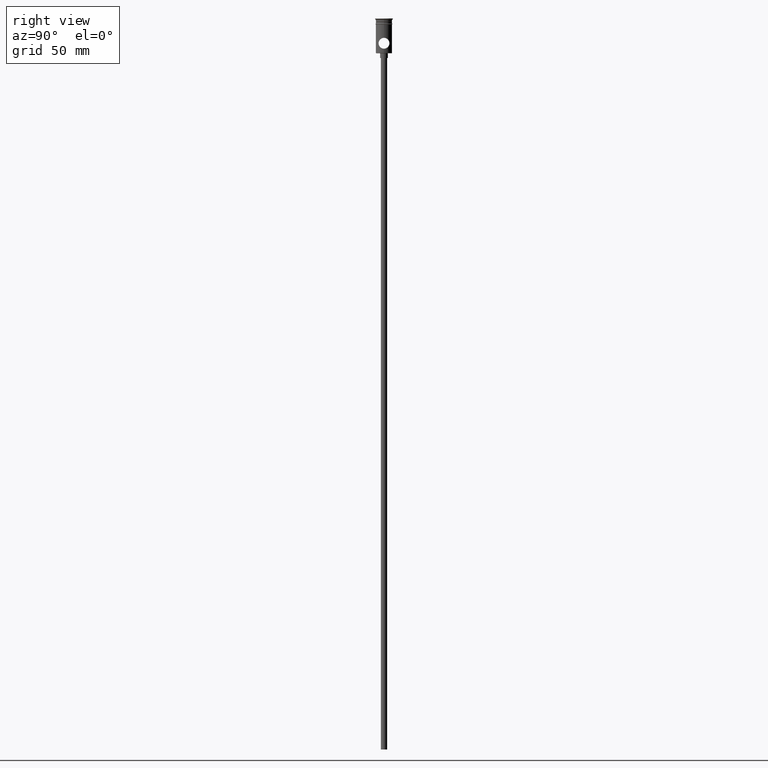
[diagram: clean part render]
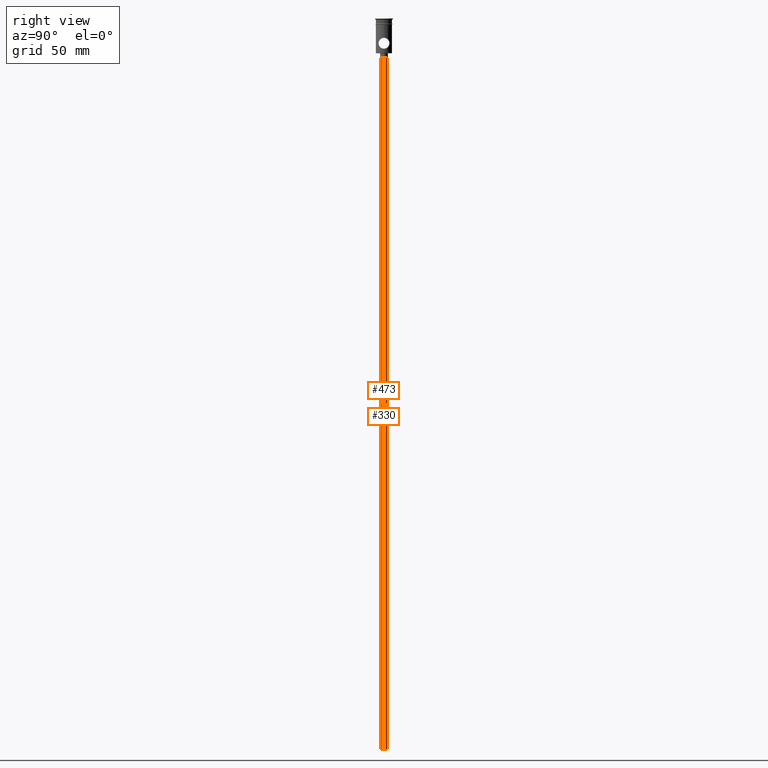
[diagram: same view with one multi-face feature highlighted, each face labeled with its STEP entity id]
A machine part, right view. The highlighted faces form ONE feature: a constant-radius fillet chain: 2 tangent blend faces with common blend radius 2 mm. The faces share edges in the B-rep.
Their STEP definitions:
[1] entity #473 (Cylinder):
#21 = DIRECTION ( 'NONE',  ( 1.000000000000000000, 0.000000000000000000, 0.000000000000000000 ) ) ;
#47 = EDGE_LOOP ( 'NONE', ( #995, #977, #521, #301 ) ) ;
#123 = DIRECTION ( 'NONE',  ( -0.000000000000000000, -0.000000000000000000, 1.000000000000000000 ) ) ;
#124 = VERTEX_POINT ( 'NONE', #334 ) ;
#135 = AXIS2_PLACEMENT_3D ( 'NONE', #925, #1268, #362 ) ;
#185 = AXIS2_PLACEMENT_3D ( 'NONE', #1025, #123, #21 ) ;
#234 = LINE ( 'NONE', #1124, #241 ) ;
#241 = VECTOR ( 'NONE', #1020, 1000.000000000000000 ) ;
#291 = CIRCLE ( 'NONE', #135, 2.000000000000000000 ) ;
#294 = CIRCLE ( 'NONE', #451, 2.000000000000000000 ) ;
#301 = ORIENTED_EDGE ( 'NONE', *, *, #1135, .T. ) ;
#334 = CARTESIAN_POINT ( 'NONE',  ( 2.000000000000000000, 0.000000000000000000, -472.5000000000000568 ) ) ;
#362 = DIRECTION ( 'NONE',  ( -1.000000000000000000, 0.000000000000000000, 0.000000000000000000 ) ) ;
#384 = EDGE_CURVE ( 'NONE', #713, #691, #1344, .T. ) ;
#444 = CARTESIAN_POINT ( 'NONE',  ( -2.000000000000000000, 2.449293598294706414E-16, -472.5000000000000568 ) ) ;
#451 = AXIS2_PLACEMENT_3D ( 'NONE', #963, #814, #727 ) ;
#459 = EDGE_CURVE ( 'NONE', #124, #713, #291, .T. ) ;
#473 = ADVANCED_FACE ( 'NONE', ( #573 ), #1031, .T. ) ;
#521 = ORIENTED_EDGE ( 'NONE', *, *, #1342, .T. ) ;
#573 = FACE_OUTER_BOUND ( 'NONE', #47, .T. ) ;
#587 = VERTEX_POINT ( 'NONE', #719 ) ;
#639 = DIRECTION ( 'NONE',  ( -0.000000000000000000, -0.000000000000000000, 1.000000000000000000 ) ) ;
#691 = VERTEX_POINT ( 'NONE', #1459 ) ;
#713 = VERTEX_POINT ( 'NONE', #444 ) ;
#719 = CARTESIAN_POINT ( 'NONE',  ( 2.000000000000000000, 0.000000000000000000, -25.50000000000000000 ) ) ;
#727 = DIRECTION ( 'NONE',  ( -1.000000000000000000, 0.000000000000000000, 0.000000000000000000 ) ) ;
#784 = CARTESIAN_POINT ( 'NONE',  ( -2.000000000000000000, 2.449293598294706414E-16, -472.5000000000000568 ) ) ;
#814 = DIRECTION ( 'NONE',  ( 0.000000000000000000, 0.000000000000000000, -1.000000000000000000 ) ) ;
#925 = CARTESIAN_POINT ( 'NONE',  ( 0.000000000000000000, 0.000000000000000000, -472.5000000000000568 ) ) ;
#963 = CARTESIAN_POINT ( 'NONE',  ( 0.000000000000000000, 0.000000000000000000, -25.50000000000000000 ) ) ;
#977 = ORIENTED_EDGE ( 'NONE', *, *, #459, .F. ) ;
#995 = ORIENTED_EDGE ( 'NONE', *, *, #384, .F. ) ;
#1020 = DIRECTION ( 'NONE',  ( -0.000000000000000000, -0.000000000000000000, 1.000000000000000000 ) ) ;
#1025 = CARTESIAN_POINT ( 'NONE',  ( 0.000000000000000000, 0.000000000000000000, -472.5000000000000568 ) ) ;
#1031 = CYLINDRICAL_SURFACE ( 'NONE', #185, 2.000000000000000000 ) ;
#1106 = VECTOR ( 'NONE', #639, 1000.000000000000000 ) ;
#1124 = CARTESIAN_POINT ( 'NONE',  ( 2.000000000000000000, 0.000000000000000000, -472.5000000000000568 ) ) ;
#1135 = EDGE_CURVE ( 'NONE', #587, #691, #294, .T. ) ;
#1268 = DIRECTION ( 'NONE',  ( 0.000000000000000000, 0.000000000000000000, -1.000000000000000000 ) ) ;
#1342 = EDGE_CURVE ( 'NONE', #124, #587, #234, .T. ) ;
#1344 = LINE ( 'NONE', #784, #1106 ) ;
#1459 = CARTESIAN_POINT ( 'NONE',  ( -2.000000000000000000, 2.449293598294706414E-16, -25.50000000000000000 ) ) ;
[2] entity #330 (Cylinder):
#55 = DIRECTION ( 'NONE',  ( -0.000000000000000000, -0.000000000000000000, 1.000000000000000000 ) ) ;
#107 = AXIS2_PLACEMENT_3D ( 'NONE', #524, #1309, #309 ) ;
#124 = VERTEX_POINT ( 'NONE', #334 ) ;
#144 = EDGE_CURVE ( 'NONE', #713, #124, #1314, .T. ) ;
#159 = AXIS2_PLACEMENT_3D ( 'NONE', #633, #55, #984 ) ;
#173 = ORIENTED_EDGE ( 'NONE', *, *, #326, .T. ) ;
#187 = CYLINDRICAL_SURFACE ( 'NONE', #159, 2.000000000000000000 ) ;
#231 = ORIENTED_EDGE ( 'NONE', *, *, #1342, .F. ) ;
#234 = LINE ( 'NONE', #1124, #241 ) ;
#241 = VECTOR ( 'NONE', #1020, 1000.000000000000000 ) ;
#309 = DIRECTION ( 'NONE',  ( -1.000000000000000000, 0.000000000000000000, 0.000000000000000000 ) ) ;
#326 = EDGE_CURVE ( 'NONE', #691, #587, #678, .T. ) ;
#330 = ADVANCED_FACE ( 'NONE', ( #757 ), #187, .T. ) ;
#334 = CARTESIAN_POINT ( 'NONE',  ( 2.000000000000000000, 0.000000000000000000, -472.5000000000000568 ) ) ;
#348 = EDGE_LOOP ( 'NONE', ( #518, #619, #173, #231 ) ) ;
#384 = EDGE_CURVE ( 'NONE', #713, #691, #1344, .T. ) ;
#429 = DIRECTION ( 'NONE',  ( -1.000000000000000000, 0.000000000000000000, 0.000000000000000000 ) ) ;
#444 = CARTESIAN_POINT ( 'NONE',  ( -2.000000000000000000, 2.449293598294706414E-16, -472.5000000000000568 ) ) ;
#518 = ORIENTED_EDGE ( 'NONE', *, *, #144, .F. ) ;
#524 = CARTESIAN_POINT ( 'NONE',  ( 0.000000000000000000, 0.000000000000000000, -25.50000000000000000 ) ) ;
#587 = VERTEX_POINT ( 'NONE', #719 ) ;
#619 = ORIENTED_EDGE ( 'NONE', *, *, #384, .T. ) ;
#633 = CARTESIAN_POINT ( 'NONE',  ( 0.000000000000000000, 0.000000000000000000, -472.5000000000000568 ) ) ;
#639 = DIRECTION ( 'NONE',  ( -0.000000000000000000, -0.000000000000000000, 1.000000000000000000 ) ) ;
#678 = CIRCLE ( 'NONE', #107, 2.000000000000000000 ) ;
#691 = VERTEX_POINT ( 'NONE', #1459 ) ;
#713 = VERTEX_POINT ( 'NONE', #444 ) ;
#719 = CARTESIAN_POINT ( 'NONE',  ( 2.000000000000000000, 0.000000000000000000, -25.50000000000000000 ) ) ;
#757 = FACE_OUTER_BOUND ( 'NONE', #348, .T. ) ;
#784 = CARTESIAN_POINT ( 'NONE',  ( -2.000000000000000000, 2.449293598294706414E-16, -472.5000000000000568 ) ) ;
#984 = DIRECTION ( 'NONE',  ( 1.000000000000000000, 0.000000000000000000, 0.000000000000000000 ) ) ;
#1020 = DIRECTION ( 'NONE',  ( -0.000000000000000000, -0.000000000000000000, 1.000000000000000000 ) ) ;
#1106 = VECTOR ( 'NONE', #639, 1000.000000000000000 ) ;
#1124 = CARTESIAN_POINT ( 'NONE',  ( 2.000000000000000000, 0.000000000000000000, -472.5000000000000568 ) ) ;
#1231 = DIRECTION ( 'NONE',  ( 0.000000000000000000, 0.000000000000000000, -1.000000000000000000 ) ) ;
#1309 = DIRECTION ( 'NONE',  ( 0.000000000000000000, 0.000000000000000000, -1.000000000000000000 ) ) ;
#1314 = CIRCLE ( 'NONE', #1406, 2.000000000000000000 ) ;
#1327 = CARTESIAN_POINT ( 'NONE',  ( 0.000000000000000000, 0.000000000000000000, -472.5000000000000568 ) ) ;
#1342 = EDGE_CURVE ( 'NONE', #124, #587, #234, .T. ) ;
#1344 = LINE ( 'NONE', #784, #1106 ) ;
#1406 = AXIS2_PLACEMENT_3D ( 'NONE', #1327, #1231, #429 ) ;
#1459 = CARTESIAN_POINT ( 'NONE',  ( -2.000000000000000000, 2.449293598294706414E-16, -25.50000000000000000 ) ) ;